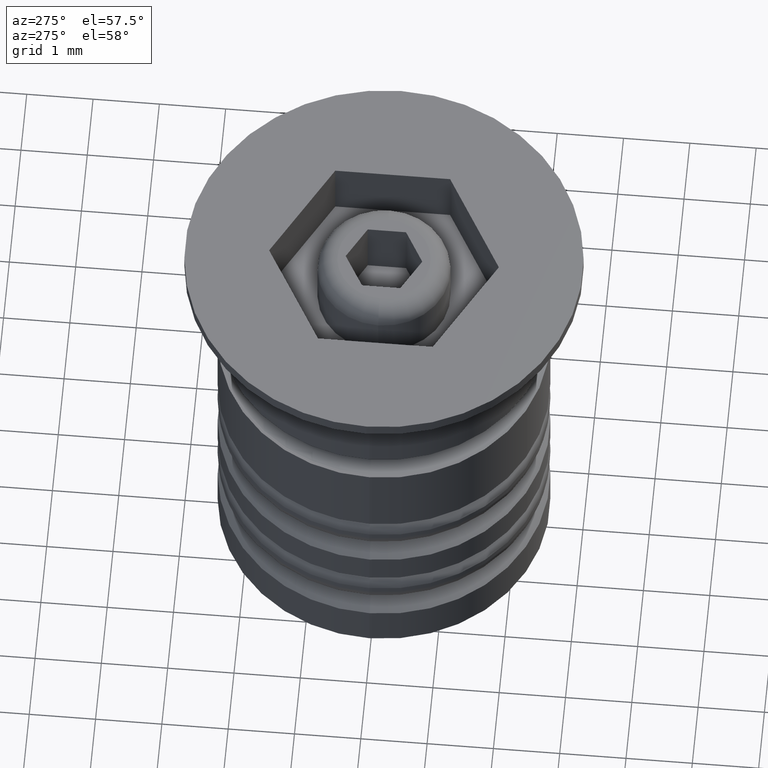
[diagram: clean part render]
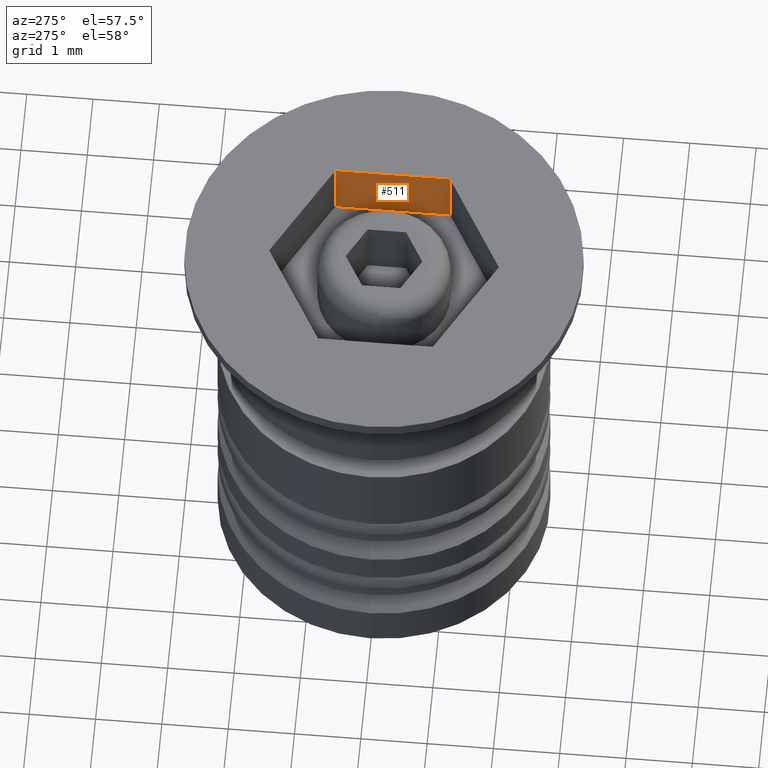
[diagram: same view with one face highlighted and labeled with its STEP entity id]
A machine part, auxiliary view. The second image highlights one B-rep face of the part: STEP entity #511.
In plain terms, the highlighted planar face has unit normal (1, -0, 0).
Its self-contained STEP definition (entity closure, byte-faithful):
#42 = VERTEX_POINT ( 'NONE', #414 ) ;
#132 = VERTEX_POINT ( 'NONE', #1732 ) ;
#227 = AXIS2_PLACEMENT_3D ( 'NONE', #718, #436, #1576 ) ;
#334 = ORIENTED_EDGE ( 'NONE', *, *, #395, .T. ) ;
#340 = CARTESIAN_POINT ( 'NONE',  ( 1.500000000000000444, -0.8660254037844393737, -1.000000000000000000 ) ) ;
#364 = ORIENTED_EDGE ( 'NONE', *, *, #632, .F. ) ;
#395 = EDGE_CURVE ( 'NONE', #132, #42, #924, .T. ) ;
#414 = CARTESIAN_POINT ( 'NONE',  ( 1.500000000000000444, 0.8660254037844385966, 0.000000000000000000 ) ) ;
#436 = DIRECTION ( 'NONE',  ( 1.000000000000000000, -0.000000000000000000, 0.000000000000000000 ) ) ;
#469 = CARTESIAN_POINT ( 'NONE',  ( 1.500000000000000444, 0.8660254037844385966, -1.000000000000000000 ) ) ;
#490 = VECTOR ( 'NONE', #1207, 1000.000000000000000 ) ;
#492 = LINE ( 'NONE', #469, #1410 ) ;
#504 = VERTEX_POINT ( 'NONE', #587 ) ;
#511 = ADVANCED_FACE ( 'NONE', ( #570 ), #1568, .F. ) ;
#570 = FACE_OUTER_BOUND ( 'NONE', #1020, .T. ) ;
#587 = CARTESIAN_POINT ( 'NONE',  ( 1.500000000000000444, 0.8660254037844385966, -1.000000000000000000 ) ) ;
#632 = EDGE_CURVE ( 'NONE', #1008, #504, #1486, .T. ) ;
#634 = CARTESIAN_POINT ( 'NONE',  ( 1.500000000000000444, -0.8660254037844393737, 0.000000000000000000 ) ) ;
#676 = LINE ( 'NONE', #1099, #1389 ) ;
#718 = CARTESIAN_POINT ( 'NONE',  ( 1.500000000000000444, -0.8660254037844393737, -1.000000000000000000 ) ) ;
#779 = DIRECTION ( 'NONE',  ( 0.000000000000000000, 1.000000000000000000, 0.000000000000000000 ) ) ;
#801 = EDGE_CURVE ( 'NONE', #504, #42, #492, .T. ) ;
#875 = CARTESIAN_POINT ( 'NONE',  ( 1.500000000000000444, -0.8660254037844393737, -1.000000000000000000 ) ) ;
#924 = LINE ( 'NONE', #634, #490 ) ;
#976 = ORIENTED_EDGE ( 'NONE', *, *, #1361, .T. ) ;
#1008 = VERTEX_POINT ( 'NONE', #875 ) ;
#1020 = EDGE_LOOP ( 'NONE', ( #334, #1044, #364, #976 ) ) ;
#1044 = ORIENTED_EDGE ( 'NONE', *, *, #801, .F. ) ;
#1099 = CARTESIAN_POINT ( 'NONE',  ( 1.500000000000000444, -0.8660254037844393737, -1.000000000000000000 ) ) ;
#1207 = DIRECTION ( 'NONE',  ( 0.000000000000000000, 1.000000000000000000, 0.000000000000000000 ) ) ;
#1225 = DIRECTION ( 'NONE',  ( -0.000000000000000000, -0.000000000000000000, 1.000000000000000000 ) ) ;
#1361 = EDGE_CURVE ( 'NONE', #1008, #132, #676, .T. ) ;
#1389 = VECTOR ( 'NONE', #1527, 1000.000000000000000 ) ;
#1410 = VECTOR ( 'NONE', #1225, 1000.000000000000000 ) ;
#1486 = LINE ( 'NONE', #340, #1766 ) ;
#1527 = DIRECTION ( 'NONE',  ( -0.000000000000000000, -0.000000000000000000, 1.000000000000000000 ) ) ;
#1568 = PLANE ( 'NONE',  #227 ) ;
#1576 = DIRECTION ( 'NONE',  ( 0.000000000000000000, 0.000000000000000000, -1.000000000000000000 ) ) ;
#1732 = CARTESIAN_POINT ( 'NONE',  ( 1.500000000000000444, -0.8660254037844393737, 0.000000000000000000 ) ) ;
#1766 = VECTOR ( 'NONE', #779, 1000.000000000000000 ) ;